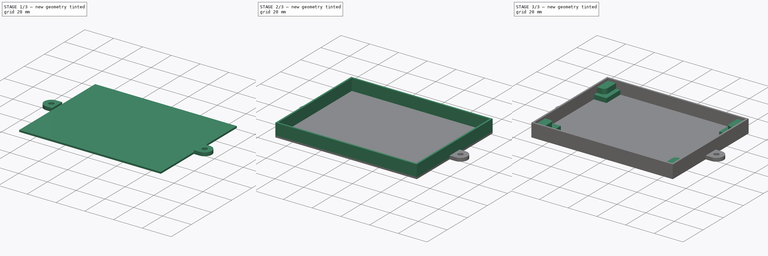
[diagram: build sequence overview — one tinted view per stage of 3, left to right]
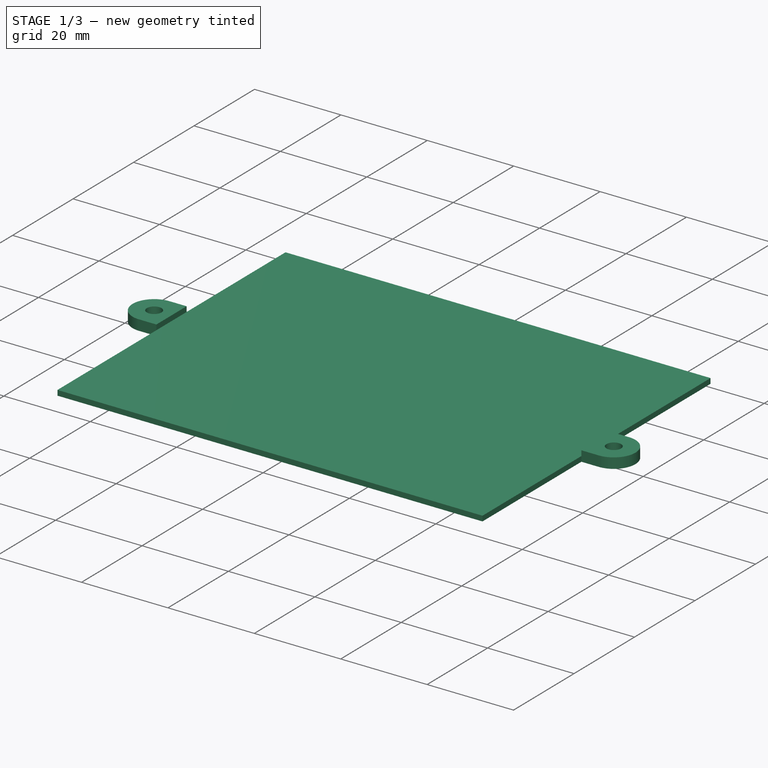
[diagram: stage 1 of 3 — iso view after this stage's code; geometry added in this stage tinted green]
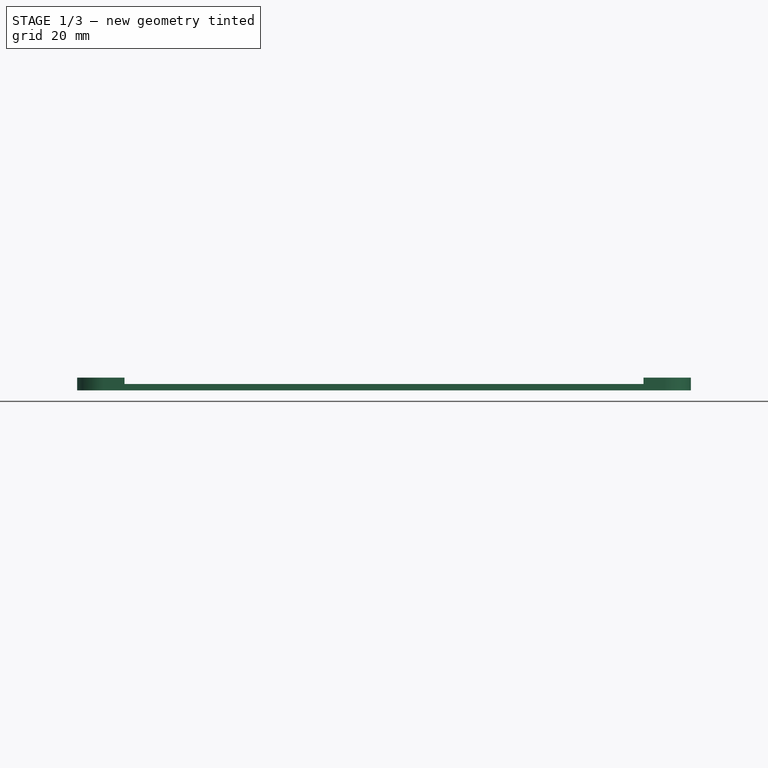
[diagram: stage 1 of 3 — front view after this stage's code; geometry added in this stage tinted green]
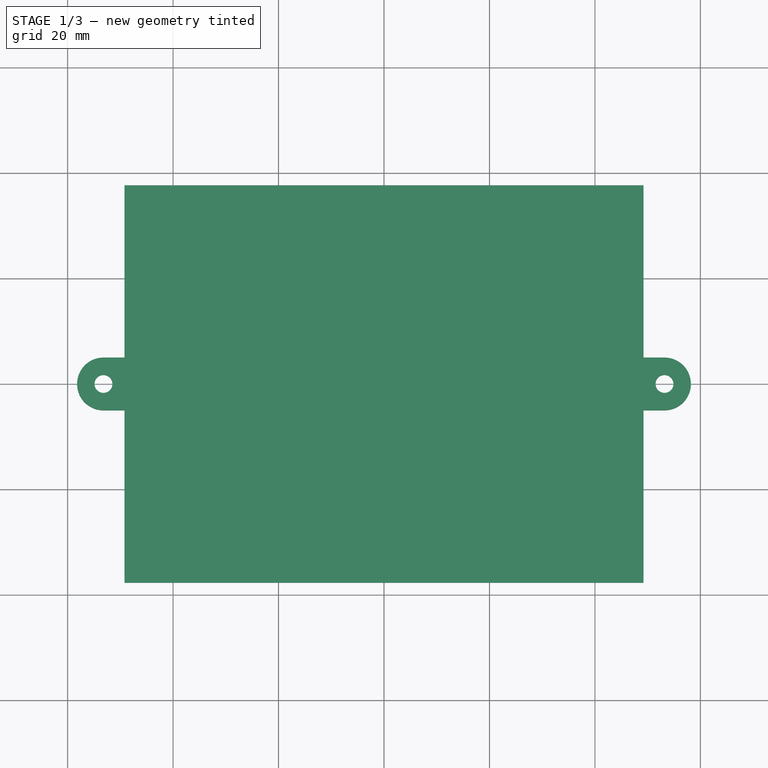
[diagram: stage 1 of 3 — top view after this stage's code; geometry added in this stage tinted green]
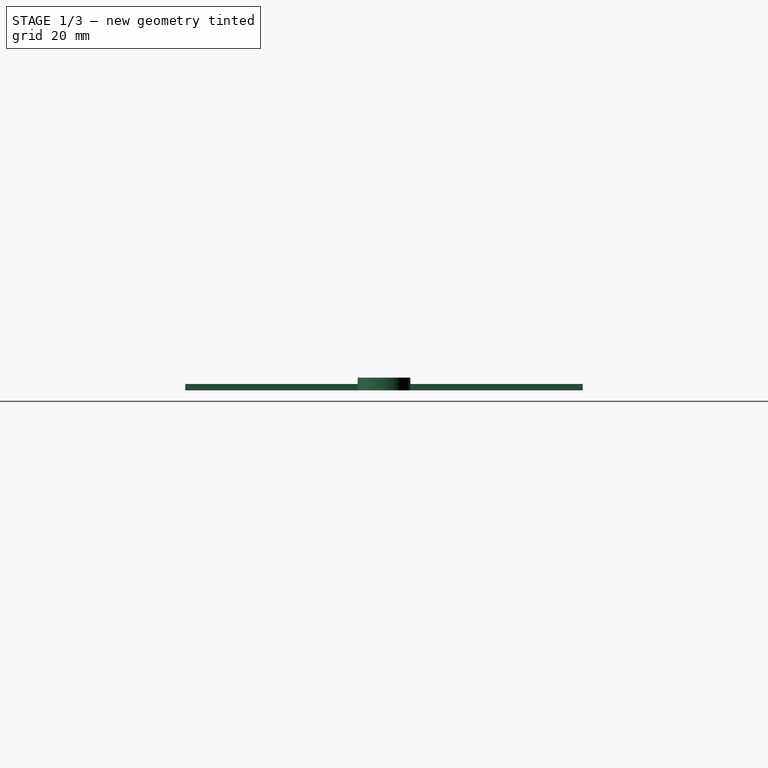
[diagram: stage 1 of 3 — right view after this stage's code; geometry added in this stage tinted green]
FCSTD DOCUMENT  (FreeCAD 0.16R)
Label: TpBox_base_huge
License: All rights reserved
LicenseURL: http://en.wikipedia.org/wiki/All_rights_reserved
objects: Sketcher::SketchObject×5, PartDesign::Pad×5
note: 15 computed .brp shape members not serialized (recipe doc carries the construction recipe); baked Part::Feature solids carry a one-line shape summary decoded from their .brp

FEATURE [Sketcher::SketchObject] Sketch
  sketch-geometry (18):
    g0: LineSegment StartX=-49.2 StartY=37.7 StartZ=0 EndX=-49.2 EndY=5 EndZ=0
    g1: LineSegment StartX=-49.2 StartY=5 StartZ=0 EndX=-53.2 EndY=5 EndZ=0
    g2: LineSegment StartX=49.2 StartY=37.7 StartZ=0 EndX=49.2 EndY=5 EndZ=0
    g3: LineSegment StartX=49.2 StartY=5 StartZ=0 EndX=53.2 EndY=5 EndZ=0
    g4: LineSegment StartX=-53.2 StartY=-5 StartZ=0 EndX=-49.2 EndY=-5 EndZ=0
    g5: LineSegment StartX=-49.2 StartY=-5 StartZ=0 EndX=-49.2 EndY=-37.7 EndZ=0
    g6: LineSegment StartX=-49.2 StartY=-37.7 StartZ=0 EndX=49.2 EndY=-37.7 EndZ=0
    g7: LineSegment StartX=49.2 StartY=-37.7 StartZ=0 EndX=49.2 EndY=-5 EndZ=0
    g8: LineSegment StartX=-49.2 StartY=37.7 StartZ=0 EndX=49.2 EndY=37.7 EndZ=0
    g9: ArcOfCircle CenterX=53.2 CenterY=0 CenterZ=0 NormalX=0 NormalY=0 NormalZ=1 Radius=5 StartAngle=4.71239 EndAngle=7.85398
    g10: Circle CenterX=-53.2 CenterY=0 CenterZ=0 NormalX=0 NormalY=0 NormalZ=1 Radius=1.7
    g11: Circle CenterX=53.2 CenterY=0 CenterZ=0 NormalX=0 NormalY=0 NormalZ=1 Radius=1.7
    g12: LineSegment StartX=49.2 StartY=-5 StartZ=0 EndX=53.2 EndY=-5 EndZ=0
    g13: LineSegment [constr] StartX=-53.2 StartY=5 StartZ=0 EndX=-53.2 EndY=0 EndZ=0
    g14: LineSegment [constr] StartX=-53.2 StartY=0 StartZ=0 EndX=-53.2 EndY=-5 EndZ=0
    g15: ArcOfCircle CenterX=-53.2 CenterY=0 CenterZ=0 NormalX=0 NormalY=0 NormalZ=1 Radius=5 StartAngle=1.5708 EndAngle=4.71239
    g16: LineSegment [constr] StartX=53.2 StartY=5 StartZ=0 EndX=53.2 EndY=0 EndZ=0
    g17: LineSegment [constr] StartX=53.2 StartY=0 StartZ=0 EndX=53.2 EndY=-5 EndZ=0
  constraints (50):
    c: Horizontal(g3)
    c: Horizontal(g6)
    c: Symmetric(g0,g2,g-2)
    c: Equal(g0,g2)
    c: Equal(g2,g7)
    c: Equal(g7,g5)
    c: Coincident(g9,g3)
    c: DistanceX(g0,g2) = 98.4
    c: DistanceY(g4,g0) = 10
    c: DistanceX(g1,g1) = 4
    c: DistanceY(g5,g0) = 75.4
    c: Coincident(g11,g9)
    c: Equal(g10,g11)
    c: Radius(g10) = 1.7
    c: Coincident(g4,g5)
    c: Vertical(g5)
    c: Coincident(g5,g6)
    c: Equal(g6,g8)
    c: Horizontal(g1)
    c: Coincident(g0,g1)
    c: Horizontal(g4)
    c: Equal(g1,g4)
    c: Coincident(g0,g8)
    c: Coincident(g2,g8)
    c: Coincident(g2,g3)
    c: Coincident(g6,g7)
    c: Vertical(g7)
    c: Coincident(g12,g7)
    c: Coincident(g12,g9)
    c: Horizontal(g12)
    c: Equal(g3,g12)
    c: Vertical(g2)
    c: Coincident(g13,g1)
    c: Vertical(g13)
    c: Coincident(g14,g4)
    c: Vertical(g14)
    c: Equal(g13,g14)
    c: Coincident(g13,g14)
    c: Coincident(g10,g13)
    c: Coincident(g15,g10)
    c: Coincident(g15,g1)
    c: Coincident(g15,g4)
    c: Symmetric(g5,g0,g-1)
    c: Coincident(g16,g3)
    c: Vertical(g16)
    c: Coincident(g17,g16)
    c: Coincident(g17,g9)
    c: Equal(g16,g17)
    c: Coincident(g16,g9)
    c: DistanceX(g3,g3) = 4
FEATURE [PartDesign::Pad] Pad  label="Base"
  Length = 1.2
  Length2 = 100
  Sketch = -> Sketch
  Type = 0
FEATURE [Sketcher::SketchObject] Sketch001
  ExternalGeometry = -> [Pad]
  Placement = pos=(0,0,1.2) rot=(0,0,1;0rad)
  Support = -> Pad [Face16]
  sketch-geometry (12):
    g0: LineSegment [constr] StartX=-53.2 StartY=5 StartZ=0 EndX=-53.2 EndY=-5 EndZ=0
    g1: LineSegment [constr] StartX=53.2 StartY=5 StartZ=0 EndX=53.2 EndY=-5 EndZ=0
    g2: LineSegment StartX=-49.2 StartY=5 StartZ=0 EndX=-53.2 EndY=5 EndZ=0
    g3: LineSegment StartX=-49.2 StartY=5 StartZ=0 EndX=-49.2 EndY=-5 EndZ=0
    g4: LineSegment StartX=49.2 StartY=5 StartZ=0 EndX=49.2 EndY=-5 EndZ=0
    g5: LineSegment StartX=49.2 StartY=-5 StartZ=0 EndX=53.2 EndY=-5 EndZ=0
    g6: LineSegment StartX=49.2 StartY=5 StartZ=0 EndX=53.2 EndY=5 EndZ=0
    g7: ArcOfCircle CenterX=-53.2 CenterY=0 CenterZ=0 NormalX=0 NormalY=0 NormalZ=1 Radius=5 StartAngle=1.5708 EndAngle=4.71239
    g8: ArcOfCircle CenterX=53.2 CenterY=0 CenterZ=0 NormalX=0 NormalY=0 NormalZ=1 Radius=5 StartAngle=4.71239 EndAngle=7.85398
    g9: LineSegment StartX=-53.2 StartY=-5 StartZ=0 EndX=-49.2 EndY=-5 EndZ=0
    g10: Circle CenterX=-53.2 CenterY=0 CenterZ=0 NormalX=0 NormalY=0 NormalZ=1 Radius=1.7
    g11: Circle CenterX=53.2 CenterY=0 CenterZ=0 NormalX=0 NormalY=0 NormalZ=1 Radius=1.7
  constraints (27):
    c: Coincident(g0,g-3)
    c: Coincident(g0,g-4)
    c: Coincident(g1,g-5)
    c: Coincident(g1,g-6)
    c: Coincident(g2,g-3)
    c: Coincident(g2,g0)
    c: Coincident(g3,g-4)
    c: Vertical(g3)
    c: Coincident(g4,g-5)
    c: Coincident(g4,g-6)
    c: Coincident(g5,g4)
    c: Coincident(g5,g1)
    c: Coincident(g6,g4)
    c: Coincident(g6,g1)
    c: PointOnObject(g7,g0)
    c: Coincident(g7,g0)
    c: Coincident(g7,g0)
    c: PointOnObject(g8,g1)
    c: Coincident(g8,g1)
    c: Coincident(g8,g1)
    c: Coincident(g2,g3)
    c: Coincident(g9,g0)
    c: Coincident(g9,g3)
    c: Coincident(g10,g7)
    c: Coincident(g11,g8)
    c: Radius(g10) = 1.7
    c: Equal(g11,g10)
FEATURE [PartDesign::Pad] Pad001  label="Attach"
  Length = 1.2
  Length2 = 100
  Sketch = -> Sketch001
  Type = 0
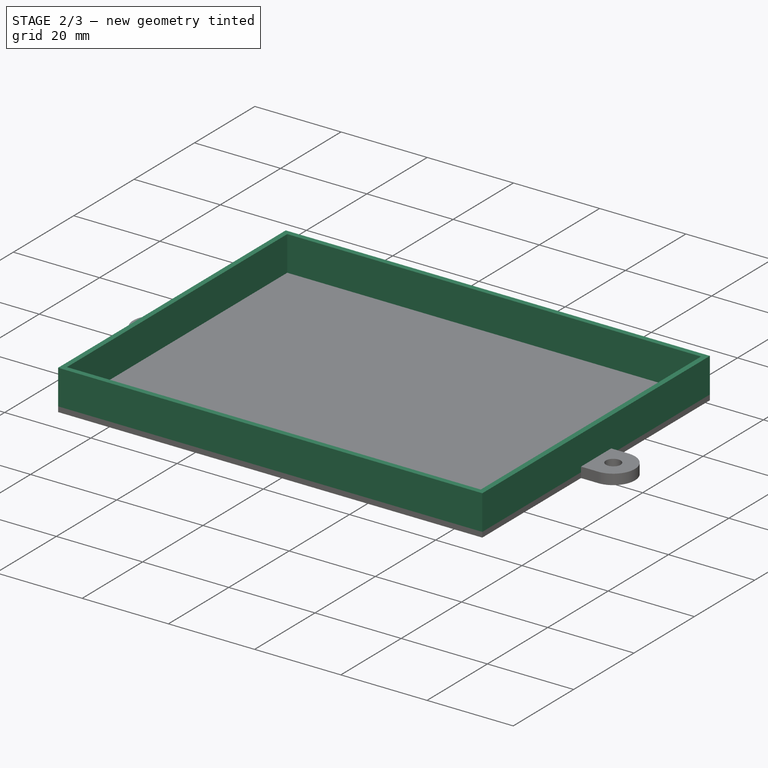
[diagram: stage 2 of 3 — iso view after this stage's code; geometry added in this stage tinted green]
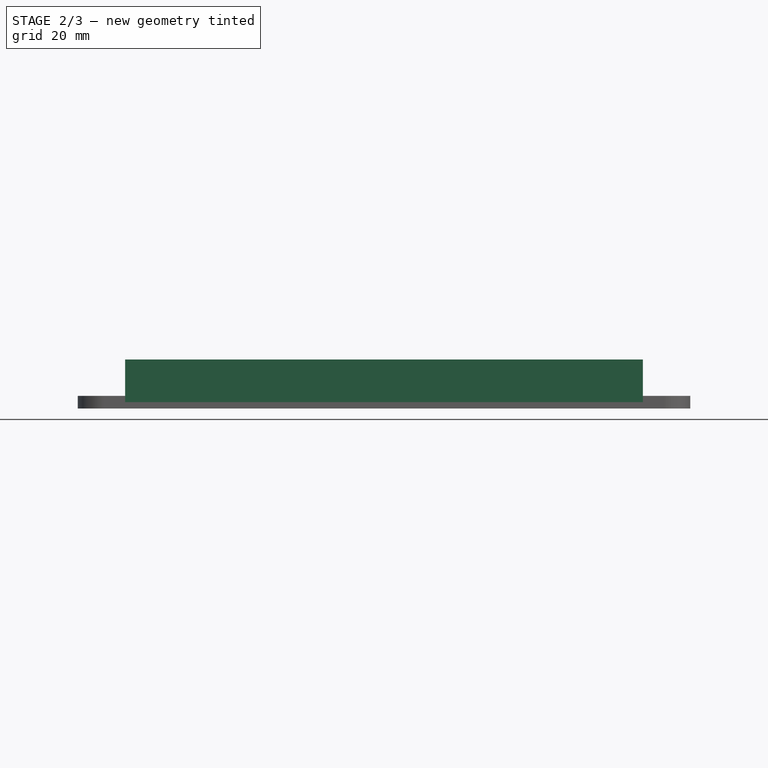
[diagram: stage 2 of 3 — front view after this stage's code; geometry added in this stage tinted green]
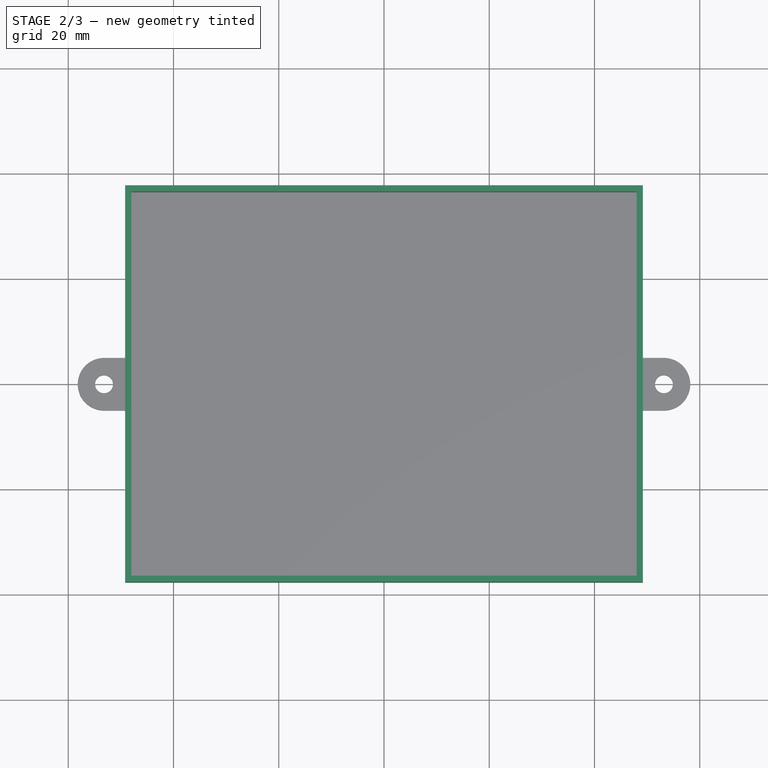
[diagram: stage 2 of 3 — top view after this stage's code; geometry added in this stage tinted green]
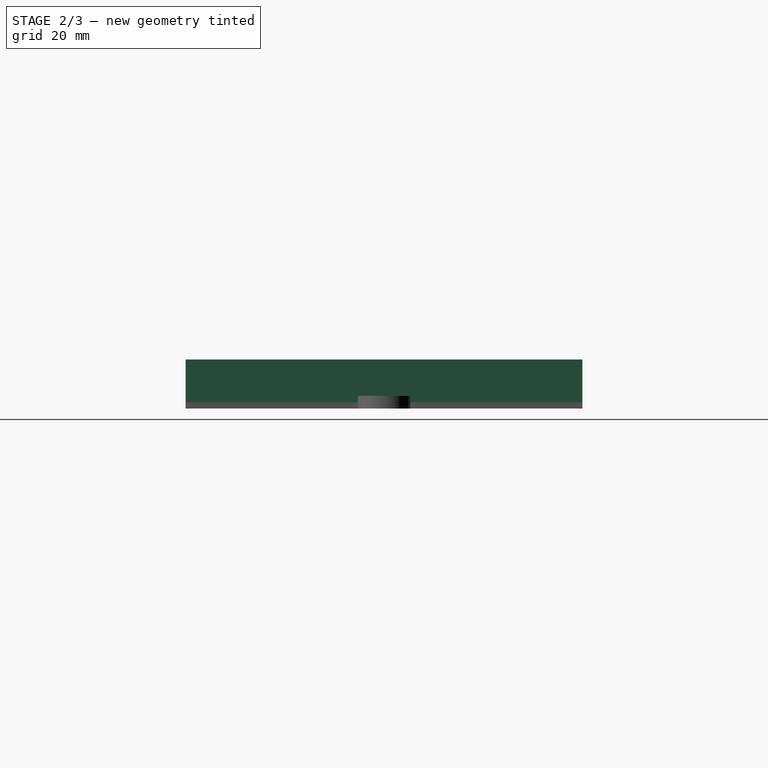
[diagram: stage 2 of 3 — right view after this stage's code; geometry added in this stage tinted green]
FEATURE [Sketcher::SketchObject] Sketch002
  ExternalGeometry = -> [Pad001]
  Placement = pos=(0,0,1.2) rot=(0,0,1;0rad)
  Support = -> Pad001 [Face5]
  sketch-geometry (8):
    g0: LineSegment StartX=-49.2 StartY=37.7 StartZ=0 EndX=49.2 EndY=37.7 EndZ=0
    g1: LineSegment StartX=49.2 StartY=37.7 StartZ=0 EndX=49.2 EndY=-37.7 EndZ=0
    g2: LineSegment StartX=49.2 StartY=-37.7 StartZ=0 EndX=-49.2 EndY=-37.7 EndZ=0
    g3: LineSegment StartX=-49.2 StartY=-37.7 StartZ=0 EndX=-49.2 EndY=37.7 EndZ=0
    g4: LineSegment StartX=-48 StartY=36.5 StartZ=0 EndX=48 EndY=36.5 EndZ=0
    g5: LineSegment StartX=48 StartY=36.5 StartZ=0 EndX=48 EndY=-36.5 EndZ=0
    g6: LineSegment StartX=48 StartY=-36.5 StartZ=0 EndX=-48 EndY=-36.5 EndZ=0
    g7: LineSegment StartX=-48 StartY=-36.5 StartZ=0 EndX=-48 EndY=36.5 EndZ=0
  constraints (22):
    c: Coincident(g0,g1)
    c: Coincident(g1,g2)
    c: Coincident(g2,g3)
    c: Coincident(g3,g0)
    c: Horizontal(g0)
    c: Horizontal(g2)
    c: Vertical(g1)
    c: Vertical(g3)
    c: Coincident(g0,g-3)
    c: Coincident(g1,g-4)
    c: Coincident(g4,g5)
    c: Coincident(g5,g6)
    c: Coincident(g6,g7)
    c: Coincident(g7,g4)
    c: Horizontal(g4)
    c: Horizontal(g6)
    c: Vertical(g5)
    c: Vertical(g7)
    c: DistanceX(g0,g4) = 1.2
    c: DistanceY(g4,g0) = 1.2
    c: DistanceX(g5,g1) = 1.2
    c: DistanceY(g1,g5) = 1.2
FEATURE [PartDesign::Pad] Pad002  label="Walls"
  Length = 8.1
  Length2 = 100
  Sketch = -> Sketch002
  Type = 0
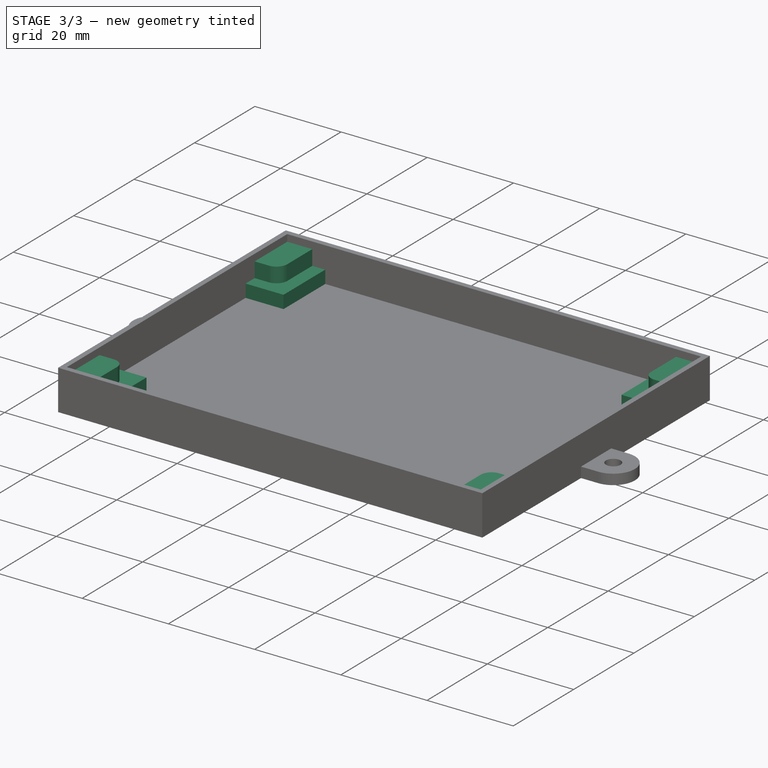
[diagram: stage 3 of 3 — iso view after this stage's code; geometry added in this stage tinted green]
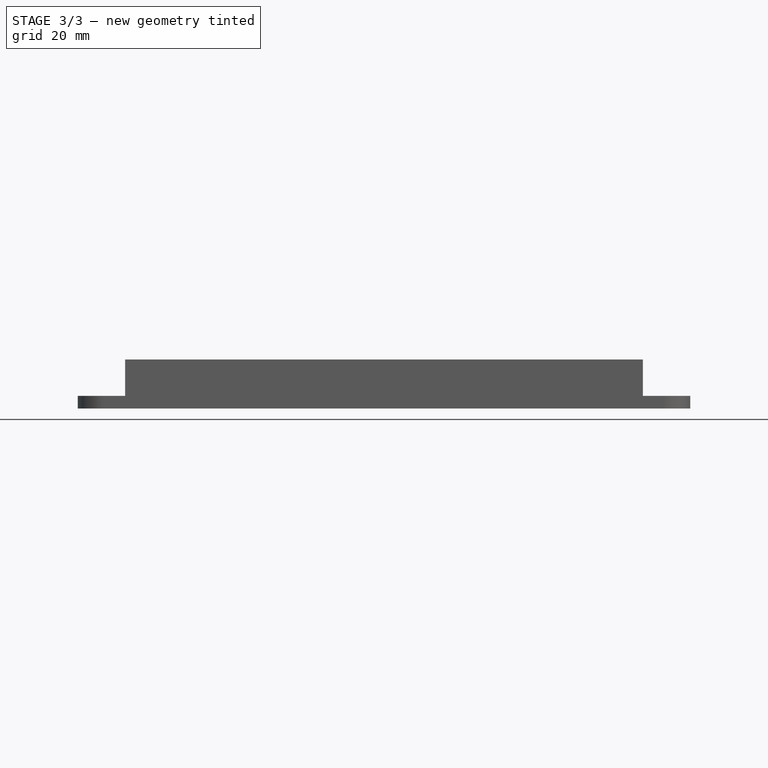
[diagram: stage 3 of 3 — front view after this stage's code; geometry added in this stage tinted green]
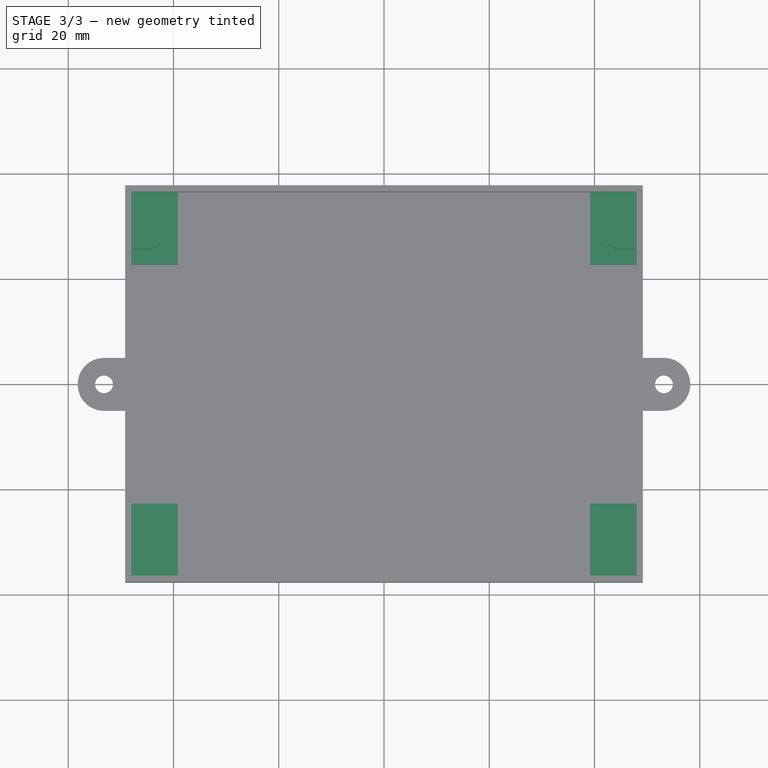
[diagram: stage 3 of 3 — top view after this stage's code; geometry added in this stage tinted green]
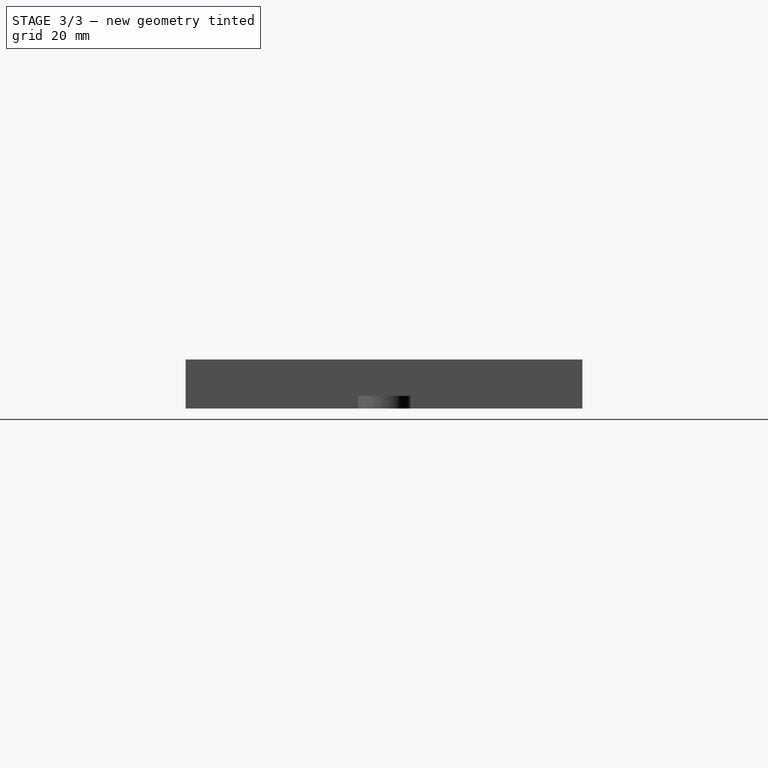
[diagram: stage 3 of 3 — right view after this stage's code; geometry added in this stage tinted green]
FEATURE [Sketcher::SketchObject] Sketch003
  ExternalGeometry = -> [Pad002]
  Placement = pos=(0,0,1.2) rot=(0,0,1;0rad)
  Support = -> Pad002 [Face35]
  sketch-geometry (16):
    g0: LineSegment StartX=-49.2 StartY=37.7 StartZ=0 EndX=-39.2 EndY=37.7 EndZ=0
    g1: LineSegment StartX=-39.2 StartY=37.7 StartZ=0 EndX=-39.2 EndY=22.7 EndZ=0
    g2: LineSegment StartX=-39.2 StartY=22.7 StartZ=0 EndX=-49.2 EndY=22.7 EndZ=0
    g3: LineSegment StartX=-49.2 StartY=22.7 StartZ=0 EndX=-49.2 EndY=37.7 EndZ=0
    g4: LineSegment StartX=49.2 StartY=37.7 StartZ=0 EndX=39.2 EndY=37.7 EndZ=0
    g5: LineSegment StartX=39.2 StartY=37.7 StartZ=0 EndX=39.2 EndY=22.7 EndZ=0
    g6: LineSegment StartX=39.2 StartY=22.7 StartZ=0 EndX=49.2 EndY=22.7 EndZ=0
    g7: LineSegment StartX=49.2 StartY=22.7 StartZ=0 EndX=49.2 EndY=37.7 EndZ=0
    g8: LineSegment StartX=-49.2 StartY=-37.7 StartZ=0 EndX=-39.2 EndY=-37.7 EndZ=0
    g9: LineSegment StartX=-39.2 StartY=-37.7 StartZ=0 EndX=-39.2 EndY=-22.7 EndZ=0
    g10: LineSegment StartX=-39.2 StartY=-22.7 StartZ=0 EndX=-49.2 EndY=-22.7 EndZ=0
    g11: LineSegment StartX=-49.2 StartY=-22.7 StartZ=0 EndX=-49.2 EndY=-37.7 EndZ=0
    g12: LineSegment StartX=49.2 StartY=-37.7 StartZ=0 EndX=39.2 EndY=-37.7 EndZ=0
    g13: LineSegment StartX=39.2 StartY=-37.7 StartZ=0 EndX=39.2 EndY=-22.7 EndZ=0
    g14: LineSegment StartX=39.2 StartY=-22.7 StartZ=0 EndX=49.2 EndY=-22.7 EndZ=0
    g15: LineSegment StartX=49.2 StartY=-22.7 StartZ=0 EndX=49.2 EndY=-37.7 EndZ=0
  constraints (52):
    c: Coincident(g0,g1)
    c: Coincident(g1,g2)
    c: Coincident(g2,g3)
    c: Coincident(g3,g0)
    c: Horizontal(g0)
    c: Horizontal(g2)
    c: Vertical(g1)
    c: Vertical(g3)
    c: Coincident(g4,g5)
    c: Coincident(g5,g6)
    c: Coincident(g6,g7)
    c: Coincident(g7,g4)
    c: Horizontal(g4)
    c: Horizontal(g6)
    c: Vertical(g5)
    c: Vertical(g7)
    c: Coincident(g8,g9)
    c: Coincident(g9,g10)
    c: Coincident(g10,g11)
    c: Coincident(g11,g8)
    c: Horizontal(g8)
    c: Horizontal(g10)
    c: Vertical(g9)
    c: Vertical(g11)
    c: Coincident(g12,g13)
    c: Coincident(g13,g14)
    c: Coincident(g14,g15)
    c: Coincident(g15,g12)
    c: Horizontal(g12)
    c: Horizontal(g14)
    c: Vertical(g13)
    c: Vertical(g15)
    c: DistanceY(g3,g3) = 15
    c: DistanceX(g0,g0) = 10
    c: Coincident(g0,g-3)
    c: Coincident(g4,g-3)
    c: Coincident(g12,g-4)
    c: Coincident(g8,g-4)
    c: Equal(g3,g1)
    c: Equal(g1,g5)
    c: Equal(g5,g7)
    c: Equal(g7,g13)
    c: Equal(g13,g15)
    c: Equal(g15,g9)
    c: Equal(g9,g11)
    c: Equal(g0,g2)
    c: Equal(g2,g4)
    c: Equal(g4,g6)
    c: Equal(g6,g8)
    c: Equal(g8,g10)
    c: Equal(g10,g12)
    c: Equal(g12,g14)
FEATURE [PartDesign::Pad] Pad003  label="Rects"
  Length = 3
  Length2 = 100
  Sketch = -> Sketch003
  Type = 0
FEATURE [Sketcher::SketchObject] Sketch004
  ExternalGeometry = -> [Pad003]
  Placement = pos=(0,0,1.2) rot=(0,0,1;0rad)
  Support = -> Pad003 [Face45]
  sketch-geometry (20):
    g0: LineSegment StartX=-44.7 StartY=25.7 StartZ=0 EndX=-49.2 EndY=25.7 EndZ=0
    g1: LineSegment StartX=-49.2 StartY=25.7 StartZ=0 EndX=-49.2 EndY=37.7 EndZ=0
    g2: LineSegment StartX=-49.2 StartY=37.7 StartZ=0 EndX=-42.2 EndY=37.7 EndZ=0
    g3: LineSegment StartX=-42.2 StartY=37.7 StartZ=0 EndX=-42.2 EndY=28.2 EndZ=0
    g4: ArcOfCircle CenterX=-44.7 CenterY=28.2 CenterZ=0 NormalX=0 NormalY=0 NormalZ=1 Radius=2.5 StartAngle=4.71238 EndAngle=6.28319
    g5: LineSegment StartX=42.2 StartY=28.2 StartZ=0 EndX=42.2 EndY=37.7 EndZ=0
    g6: LineSegment StartX=42.2 StartY=37.7 StartZ=0 EndX=49.2 EndY=37.7 EndZ=0
    g7: LineSegment StartX=49.2 StartY=37.7 StartZ=0 EndX=49.2 EndY=25.7 EndZ=0
    g8: LineSegment StartX=49.2 StartY=25.7 StartZ=0 EndX=44.7 EndY=25.7 EndZ=0
    g9: ArcOfCircle CenterX=44.7 CenterY=28.2 CenterZ=0 NormalX=0 NormalY=0 NormalZ=1 Radius=2.5 StartAngle=3.14158 EndAngle=4.7124
    g10: LineSegment StartX=49.2 StartY=-37.7 StartZ=0 EndX=42.2 EndY=-37.7 EndZ=0
    g11: LineSegment StartX=42.2 StartY=-37.7 StartZ=0 EndX=42.2 EndY=-28.2 EndZ=0
    g12: LineSegment StartX=44.7 StartY=-25.7 StartZ=0 EndX=49.2 EndY=-25.7 EndZ=0
    g13: LineSegment StartX=49.2 StartY=-25.7 StartZ=0 EndX=49.2 EndY=-37.7 EndZ=0
    g14: LineSegment StartX=-49.2 StartY=-37.7 StartZ=0 EndX=-42.2 EndY=-37.7 EndZ=0
    g15: LineSegment StartX=-42.2 StartY=-37.7 StartZ=0 EndX=-42.2 EndY=-28.2 EndZ=0
    g16: LineSegment StartX=-44.7 StartY=-25.7 StartZ=0 EndX=-49.2 EndY=-25.7 EndZ=0
    g17: LineSegment StartX=-49.2 StartY=-25.7 StartZ=0 EndX=-49.2 EndY=-37.7 EndZ=0
    g18: ArcOfCircle CenterX=44.7 CenterY=-28.2 CenterZ=0 NormalX=0 NormalY=0 NormalZ=1 Radius=2.5 StartAngle=1.5708 EndAngle=3.14159
    g19: ArcOfCircle CenterX=-44.7 CenterY=-28.2 CenterZ=0 NormalX=0 NormalY=0 NormalZ=1 Radius=2.5 StartAngle=0 EndAngle=1.5708
  constraints (56):
    c: Horizontal(g0)
    c: Coincident(g0,g1)
    c: Coincident(g1,g-3)
    c: Vertical(g1)
    c: Coincident(g1,g2)
    c: Horizontal(g2)
    c: Coincident(g2,g3)
    c: Vertical(g3)
    c: DistanceY(g1,g1) = 12
    c: Coincident(g4,g3)
    c: Coincident(g4,g0)
    c: Tangent(g3,g4)
    c: Tangent(g4,g0)
    c: DistanceX(g1,g2) = 7
    c: Radius(g4) = 2.5
    c: Vertical(g5)
    c: Coincident(g5,g6)
    c: Coincident(g6,g-3)
    c: Coincident(g6,g7)
    c: Vertical(g7)
    c: Coincident(g7,g8)
    c: Horizontal(g8)
    c: Coincident(g9,g5)
    c: Coincident(g9,g8)
    c: Tangent(g9,g8)
    c: Tangent(g9,g5)
    c: Horizontal(g6)
    c: Coincident(g10,g11)
    c: Coincident(g12,g13)
    c: Coincident(g13,g10)
    c: Horizontal(g10)
    c: Horizontal(g12)
    c: Vertical(g11)
    c: Vertical(g13)
    c: Coincident(g10,g-4)
    c: Coincident(g14,g15)
    c: Coincident(g16,g17)
    c: Coincident(g17,g14)
    c: Horizontal(g14)
    c: Horizontal(g16)
    c: Vertical(g15)
    c: Vertical(g17)
    c: Coincident(g14,g-4)
    c: Equal(g6,g10)
    c: Equal(g2,g14)
    c: Equal(g1,g17)
    c: Equal(g7,g1)
    c: Equal(g2,g6)
    c: Equal(g13,g7)
    c: Tangent(g11,g18) = 1.5708
    c: Tangent(g12,g18) = 1.5708
    c: Tangent(g15,g19) = -1.5708
    c: Tangent(g16,g19) = -1.5708
    c: Equal(g9,g4)
    c: Equal(g4,g19)
    c: Equal(g19,g18)
FEATURE [PartDesign::Pad] Pad004
  Length = 6.5
  Length2 = 100
  Sketch = -> Sketch004
  Type = 0
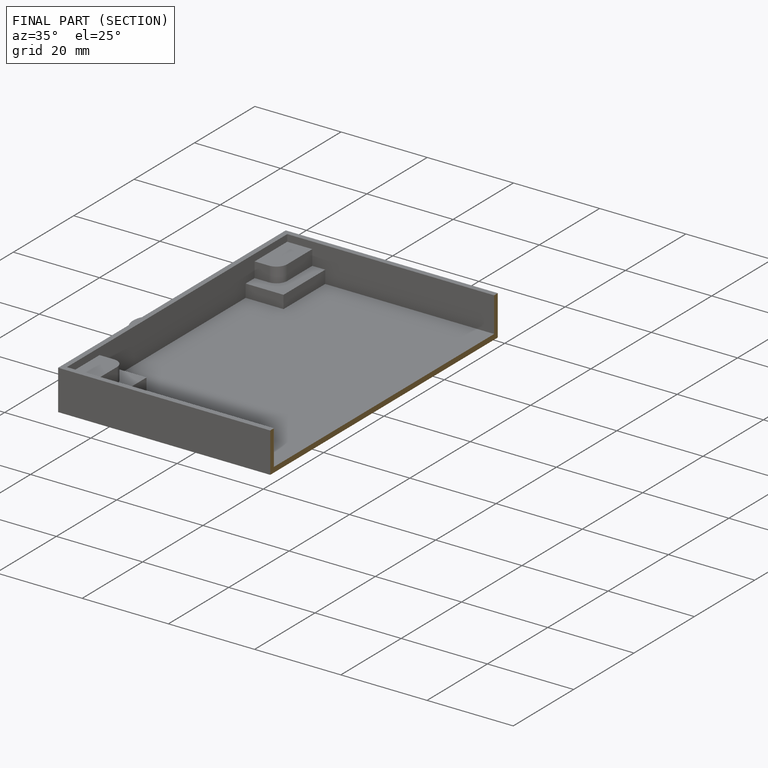
[diagram: finished part — half-section view (interior)]
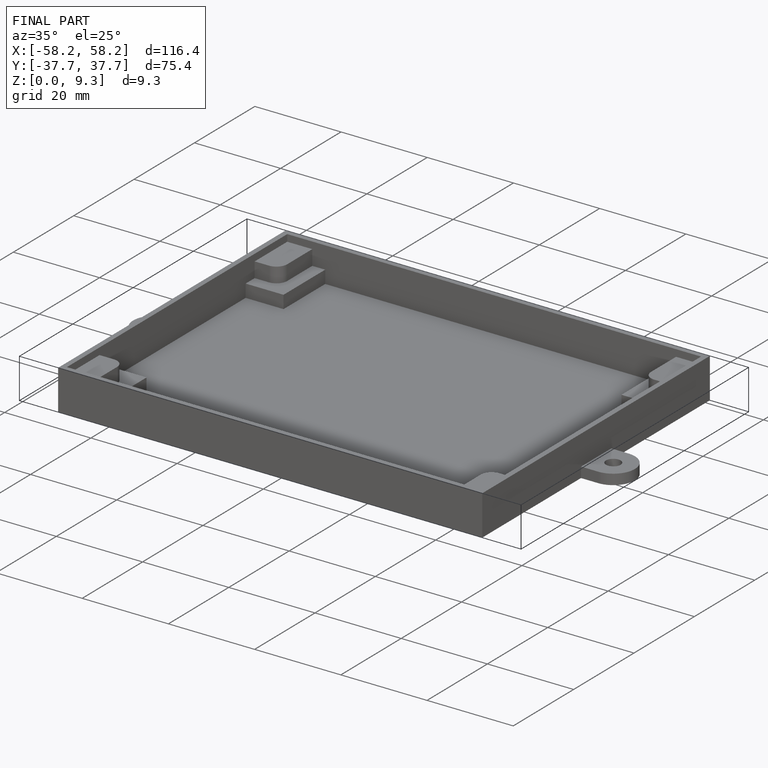
[diagram: finished part — iso view with bounding-box wireframe]
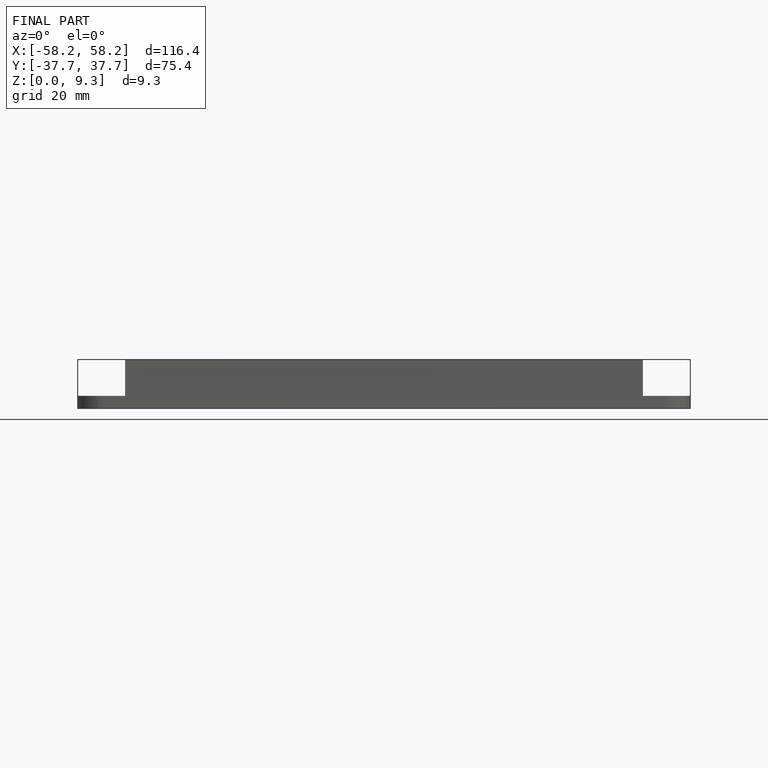
[diagram: finished part — front view with bounding-box wireframe]
